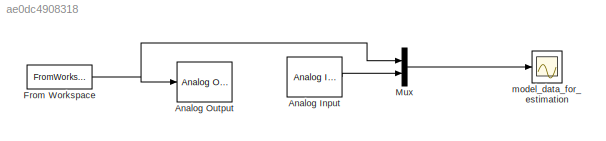
MODEL slx_ae0dc4908318
KIND model
CONFIG AbsTol = auto
CONFIG FixedStep = auto
CONFIG MaxStep = auto
CONFIG MinStep = auto
CONFIG RelTol = 1e-3
CONFIG SampleTimeConstraint = Unconstrained
CONFIG Solver = ode45
CONFIG SolverMode = SingleTasking
CONFIG SolverName = ode45
CONFIG StartTime = 0.0
CONFIG StopTime = 55
BLOCK [Reference] Analog Input  REF=sldrtlib/Analog Input
  AttributesFormatString = National Instruments\nPCI-MIO-16E-4 [auto]
  Channels = [1 2]
  DataType = 1
  DrvAddress = 4294967295
  DrvName = National_Instruments/PCI-MIO-16E-4
  DrvOptions = [0 0 0 0 0 0]
  MaxMissedTicks = 10
  Ports = [0, 1]
  RangeMode = 1
  SampleTime = 0.02
  ShowMissedTicks = off
  SourceBlock = sldrtlib/Analog Input
  SourceType = Simulink Desktop Real-Time Analog Input
  VoltRange = 1
  YieldWhenWaiting = off
BLOCK [Reference] Analog Output  REF=sldrtlib/Analog Output
  AttributesFormatString = National Instruments\nPCI-MIO-16E-4 [auto]
  Channels = 1
  DrvAddress = 4294967295
  DrvName = National_Instruments/PCI-MIO-16E-4
  DrvOptions = [0 0 0 0 0 0]
  FinalValue = 0
  InitialValue = 0
  MaxMissedTicks = 10
  Ports = [1]
  RangeMode = 1
  SampleTime = 0.02
  ShowMissedTicks = off
  SourceBlock = sldrtlib/Analog Output
  SourceType = Simulink Desktop Real-Time Analog Output
  VoltRange = 1
  YieldWhenWaiting = off
BLOCK [FromWorkspace] From Workspace
  SampleTime = 0
  VariableName = [t u]
  ZeroCross = on
BLOCK [Mux] Mux
  DisplayOption = bar
  Inputs = 2
  Ports = [2, 1]
BLOCK [Scope] model_data_for_estimation
  DataFormat = StructureWithTime
  Floating = off
  LimitDataPoints = off
  NumInputPorts = 1
  Ports = [1]
  SampleInput = on
  SampleTime = 0.02
  SaveName = model_data_for_estimation
  SaveToWorkspace = on
  TickLabels = on
  YMax = 5.5
  YMin = -5.5
LINE Analog Input:1 -> Mux:2
NET From Workspace:1 -> Analog Output:1, Mux:1
LINE Mux:1 -> model_data_for_estimation:1
note: NET lines group one-source signal fan-out (src -> all destinations, sorted); 1:1 wires keep LINE
